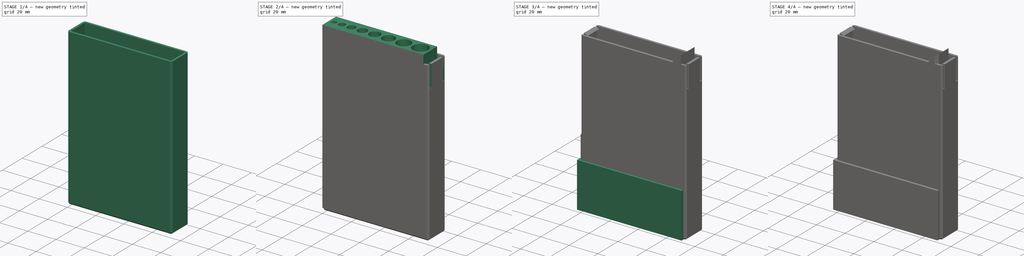
[diagram: build sequence overview — one tinted view per stage of 4, left to right]
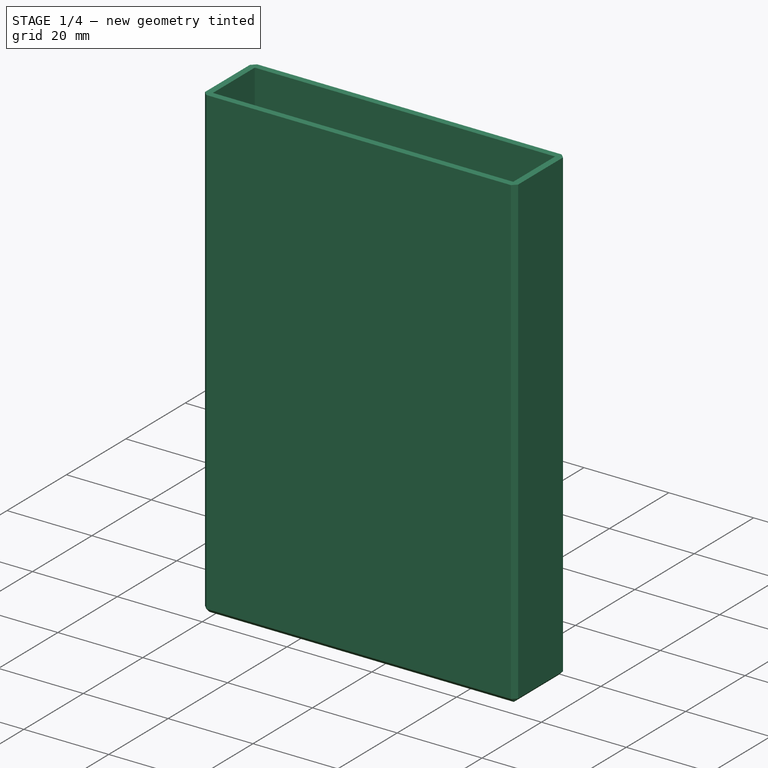
[diagram: stage 1 of 4 — iso view after this stage's code; geometry added in this stage tinted green]
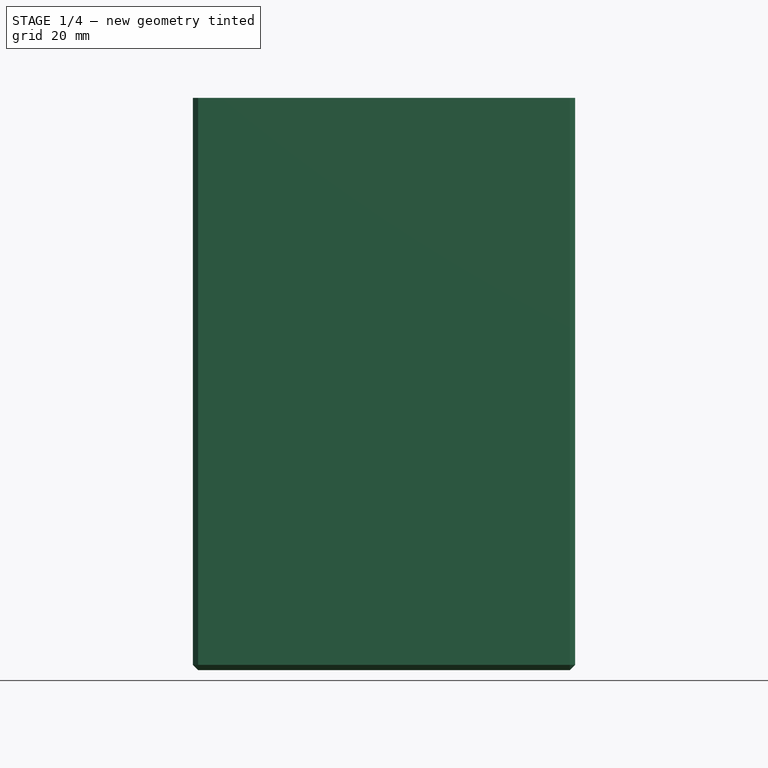
[diagram: stage 1 of 4 — front view after this stage's code; geometry added in this stage tinted green]
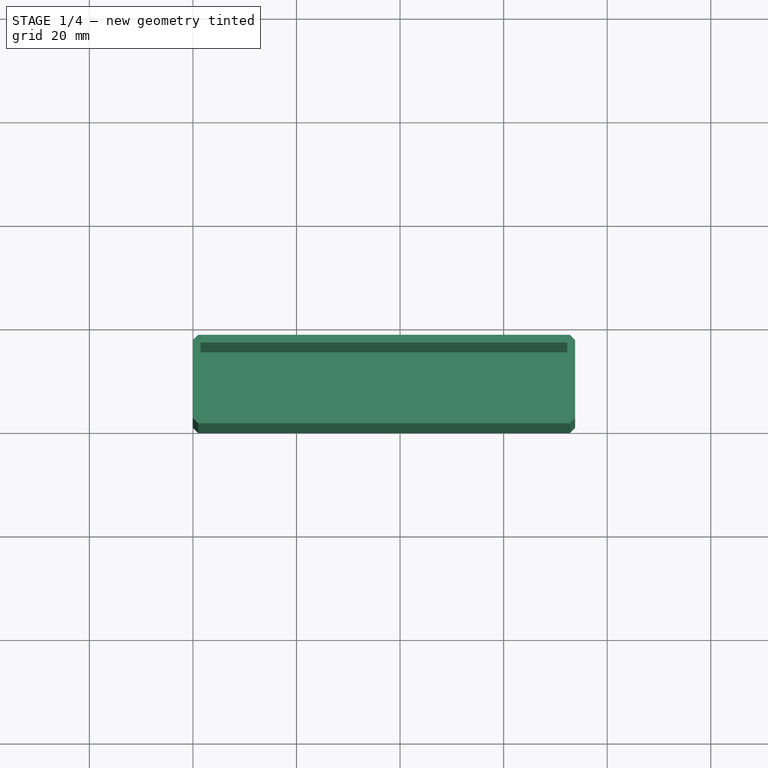
[diagram: stage 1 of 4 — top view after this stage's code; geometry added in this stage tinted green]
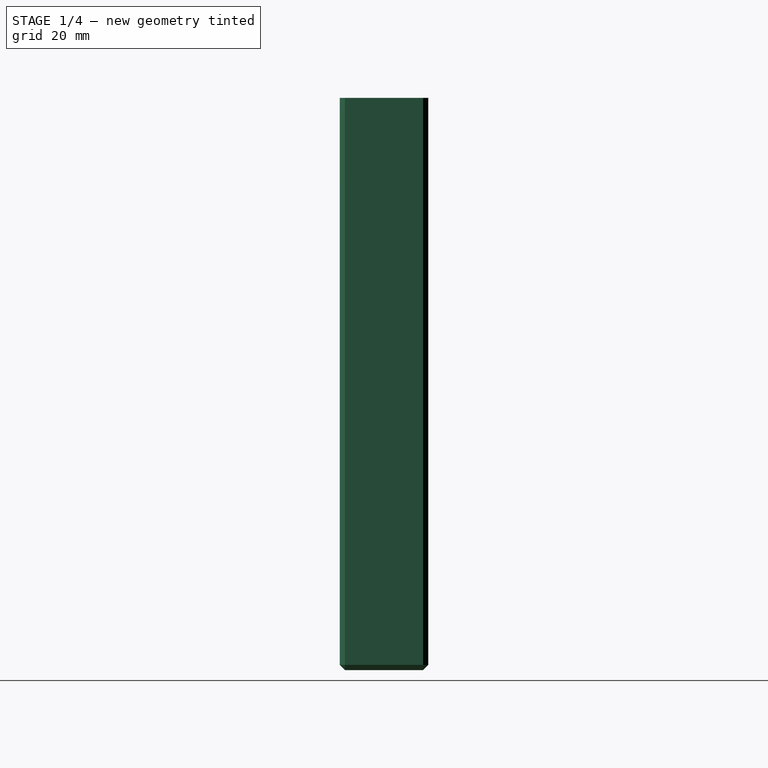
[diagram: stage 1 of 4 — right view after this stage's code; geometry added in this stage tinted green]
FCSTD DOCUMENT  (FreeCAD 2022.111R28429 (Git))
Label: drill box
License: All rights reserved
LicenseURL: http://en.wikipedia.org/wiki/All_rights_reserved
objects: Sketcher::SketchObject×9, PartDesign::Pad×6, PartDesign::Pocket×3, PartDesign::Chamfer×2, PartDesign::Body×2, Spreadsheet::Sheet×1, PartDesign::Fillet×1
note: 47 computed .brp shape members not serialized (recipe doc carries the construction recipe); baked Part::Feature solids carry a one-line shape summary decoded from their .brp

FEATURE [Sketcher::SketchObject] Sketch003
  FullyConstrained = true
  MapMode = 5
  Support = -> [XY_Plane001]
  TreeRank = 0
  expr: Constraints[10] = <<dim>>.cap_width
  expr: Constraints[19] = <<dim>>.wall
  expr: Constraints[20] = <<dim>>.wall
  expr: Constraints[21] = <<dim>>.wall
  expr: Constraints[22] = <<dim>>.wall
  expr: Constraints[9] = <<dim>>.cap_length
  sketch-geometry (8):
    g0: LineSegment StartX=0 StartY=0 StartZ=0 EndX=73.8 EndY=0 EndZ=0
    g1: LineSegment StartX=73.8 StartY=0 StartZ=0 EndX=73.8 EndY=17.1 EndZ=0
    g2: LineSegment StartX=73.8 StartY=17.1 StartZ=0 EndX=0 EndY=17.1 EndZ=0
    g3: LineSegment StartX=0 StartY=17.1 StartZ=0 EndX=0 EndY=0 EndZ=0
    g4: LineSegment StartX=1.5 StartY=15.6 StartZ=0 EndX=72.3 EndY=15.6 EndZ=0
    g5: LineSegment StartX=72.3 StartY=15.6 StartZ=0 EndX=72.3 EndY=1.5 EndZ=0
    g6: LineSegment StartX=72.3 StartY=1.5 StartZ=0 EndX=1.5 EndY=1.5 EndZ=0
    g7: LineSegment StartX=1.5 StartY=1.5 StartZ=0 EndX=1.5 EndY=15.6 EndZ=0
  constraints (23):
    c: Coincident(g0,g1)
    c: Coincident(g1,g2)
    c: Coincident(g2,g3)
    c: Coincident(g3,g0)
    c: Horizontal(g0)
    c: Horizontal(g2)
    c: Vertical(g1)
    c: Vertical(g3)
    c: Coincident(g0,g-1)
    c: DistanceX(g1) = 73.8
    c: DistanceY(g1) = 17.1
    c: Coincident(g4,g5)
    c: Coincident(g5,g6)
    c: Coincident(g6,g7)
    c: Coincident(g7,g4)
    c: Horizontal(g4)
    c: Horizontal(g6)
    c: Vertical(g5)
    c: Vertical(g7)
    c: DistanceX(g5,g0) = 1.5
    c: DistanceY(g0,g5) = 1.5
    c: DistanceY(g4,g1) = 1.5
    c: DistanceX(g2,g4) = 1.5
FEATURE [PartDesign::Pad] Pad002
  ClaimChildren = false
  Direction = (1,1,1)
  Fit = 0
  FitJoin = 0
  InnerFit = 0
  InnerFitJoin = 0
  InnerTaperAngle = 0
  InnerTaperAngleRev = 0
  Length = 109
  Length2 = 100
  Linearize = true
  NewSolid = false
  Profile = -> Sketch003
  Refine = true
  Suppress = false
  TreeRank = 0
  Type = 0
  _ProfileBasedVersion = 1
  expr: Length = Spreadsheet.cap_height
FEATURE [Sketcher::SketchObject] Sketch004
  FullyConstrained = true
  MapMode = 5
  Support = -> [XY_Plane001]
  TreeRank = 0
  expr: Constraints[10] = <<dim>>.cap_width
  expr: Constraints[9] = <<dim>>.cap_length
  sketch-geometry (4):
    g0: LineSegment StartX=0 StartY=0 StartZ=0 EndX=73.8 EndY=0 EndZ=0
    g1: LineSegment StartX=73.8 StartY=0 StartZ=0 EndX=73.8 EndY=17.1 EndZ=0
    g2: LineSegment StartX=73.8 StartY=17.1 StartZ=0 EndX=0 EndY=17.1 EndZ=0
    g3: LineSegment StartX=0 StartY=17.1 StartZ=0 EndX=0 EndY=0 EndZ=0
  constraints (11):
    c: Coincident(g0,g1)
    c: Coincident(g1,g2)
    c: Coincident(g2,g3)
    c: Coincident(g3,g0)
    c: Horizontal(g0)
    c: Horizontal(g2)
    c: Vertical(g1)
    c: Vertical(g3)
    c: Coincident(g0,g-1)
    c: DistanceX(g1) = 73.8
    c: DistanceY(g1) = 17.1
FEATURE [PartDesign::Pad] Pad003
  BaseFeature = -> Pad002
  ClaimChildren = false
  Direction = (1,1,1)
  Fit = 0
  FitJoin = 0
  InnerFit = 0
  InnerFitJoin = 0
  InnerTaperAngle = 0
  InnerTaperAngleRev = 0
  Length = 1.5
  Length2 = 100
  Linearize = true
  NewSolid = false
  Profile = -> Sketch004
  Refine = true
  Reversed = true
  Suppress = false
  TreeRank = 0
  Type = 0
  _ProfileBasedVersion = 1
  expr: Length = <<dim>>.wall
FEATURE [PartDesign::Chamfer] Chamfer001
  Angle = 45
  Base = -> Pad003 [Edge24,Edge23,Edge3,Edge4,Edge5,Edge1,Edge6,Edge2]
  BaseFeature = -> Pad003
  ChamferType = 0
  FlipDirection = false
  NewSolid = false
  Refine = true
  Size = 1
  Size2 = 1
  SupportTransform = false
  Suppress = false
  TreeRank = 0
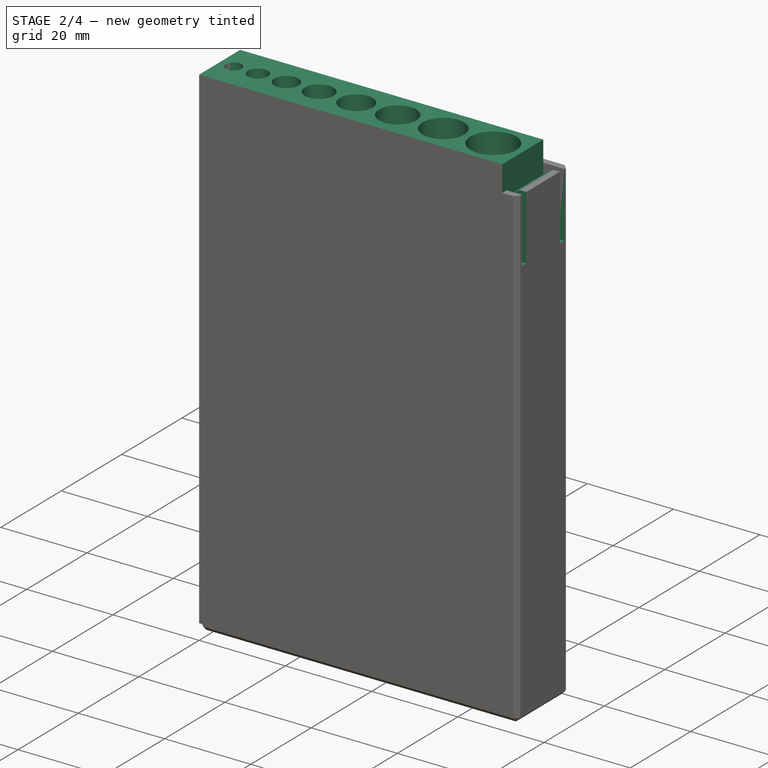
[diagram: stage 2 of 4 — iso view after this stage's code; geometry added in this stage tinted green]
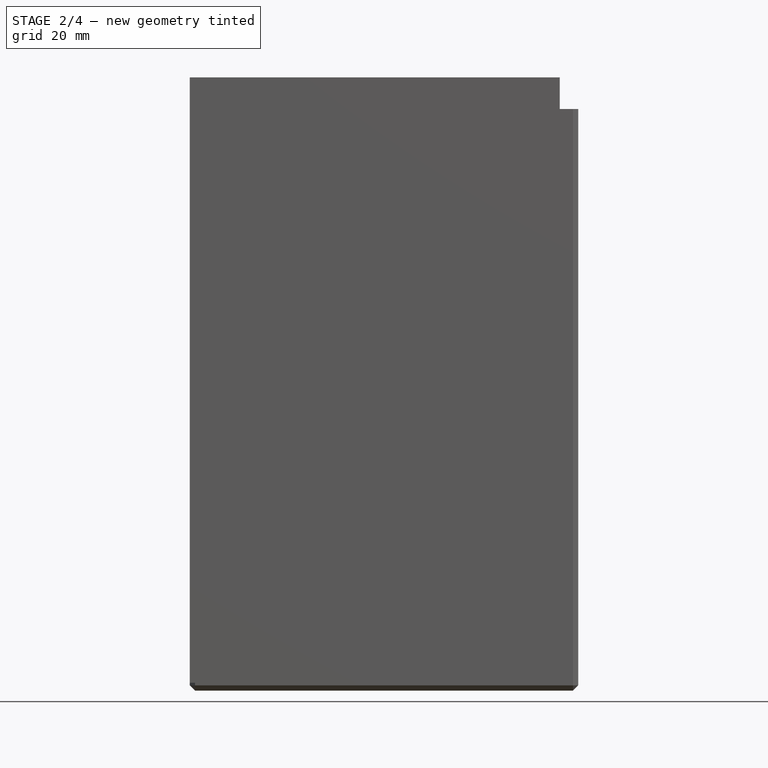
[diagram: stage 2 of 4 — front view after this stage's code; geometry added in this stage tinted green]
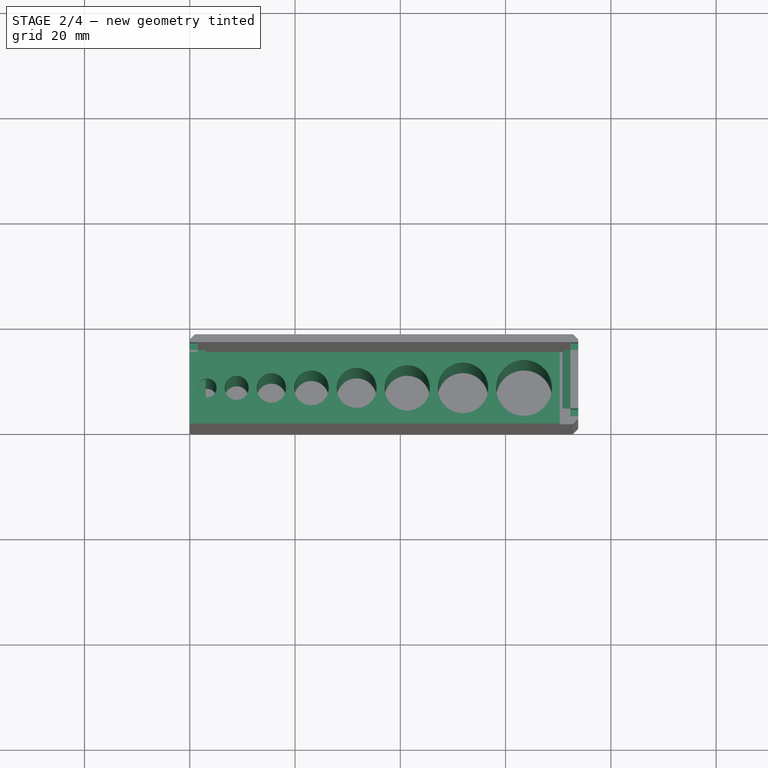
[diagram: stage 2 of 4 — top view after this stage's code; geometry added in this stage tinted green]
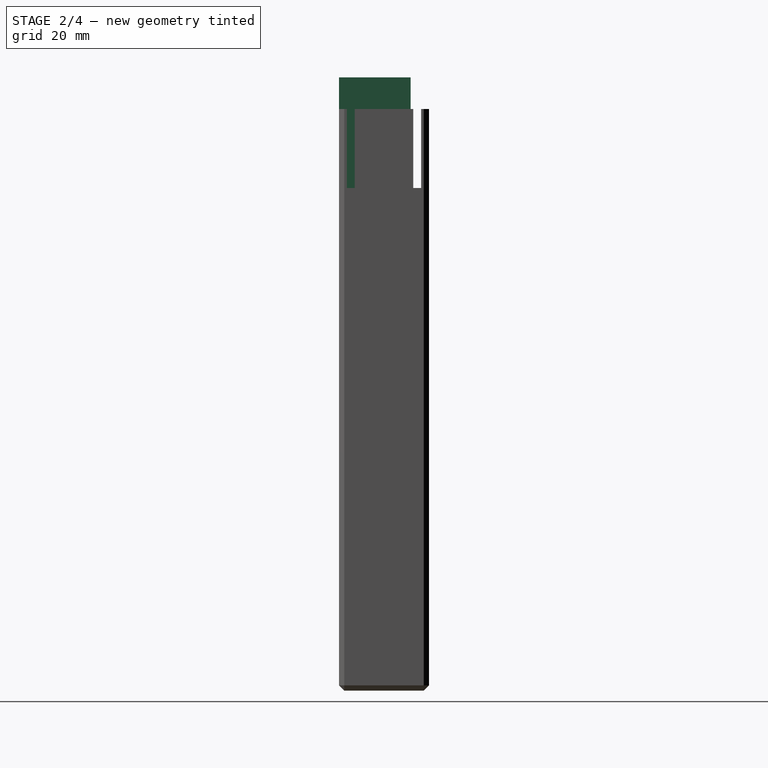
[diagram: stage 2 of 4 — right view after this stage's code; geometry added in this stage tinted green]
FEATURE [Spreadsheet::Sheet] Spreadsheet  label="dim"
  PythonMode = false
  ShowCells = 0
  TreeRank = 0
  cells = A1=drill diameters; C1=hole + slack + wall; D1=inter-distance; F1=drill length; A2=drill_d_3; B2(drill_d_3)==3mm; C2==B2 + wall + diameter_hole_slack; F2=drill_l_3; G2(drill_l_3)==66mm; A3=drill_d_4; B3(drill_d_4)==4mm; C3==B3 + wall + diameter_hole_slack; D3(inter_3_4)==B2 / 2 + B3 / 2 + diameter_hole_slack + wall; F3=drill_l_4; G3(drill_l_4)==76mm; A4=drill_d_5; B4(drill_d_5)==5mm; C4==B4 + wall + diameter_hole_slack; D4(inter_4_5)==B3 / 2 + B4 / 2 + diameter_hole_slack + wall; F4=drill_l_5; G4(drill_l_5)==86mm; A5=drill_d_6; B5(drill_d_6)==6mm; C5==B5 + wall + diameter_hole_slack; D5(inter_5_6)==B4 / 2 + B5 / 2 + diameter_hole_slack + wall; F5=drill_l_6; G5(drill_l_6)==93mm; A6=drill_d_7; B6(drill_d_7)==7mm; C6==B6 + wall + diameter_hole_slack; D6(inter_6_7)==B5 / 2 + B6 / 2 + diameter_hole_slack + wall; F6=drill_l_7; G6(drill_l_7)==107mm; A7=drill_d_8; B7(drill_d_8)==8mm; C7==B7 + wall + diameter_hole_slack; D7(inter_7_8)==B6 / 2 + B7 / 2 + diameter_hole_slack + wall; F7=drill_l_8; G7(drill_l_8)==117mm; A8=drill_d_9; B8(drill_d_9)==9mm; C8==B8 + wall + diameter_hole_slack; D8(inter_8_9)==B7 / 2 + B8 / 2 + diameter_hole_slack + wall; F8=drill_l_9; G8(drill_l_9)==126mm; A9=drill_d_10; B9(drill_d_10)==10mm; C9==B9 + diameter_hole_slack; D9(inter_9_10)==B8 / 2 + B9 / 2 + diameter_hole_slack + wall; F9=drill_l_10; G9(drill_l_10)==135mm; A10=drill_total_no_wall; B10(drill_total_no_wall)==C10; C10==C2 + C3 + C4 + C5 + C6 + C7 + C8 + C9; F11=length_reduction; G11(length_reduction)==20mm; A12=diameter_hole_slack; B12(diameter_hole_slack)==0.6mm; A13=wall; B13(wall)==1.5mm; F13=box_height_low; G13(box_height_low)==drill_l_3 - length_reduction; F14=box_height_high; G14(box_height_high)==drill_l_10 - length_reduction; A15=box_length; B15(box_length)==drill_total_no_wall + 2 * wall; A16=box_width; B16(box_width)==max(B2, B9) + 2 * wall + diameter_hole_slack; A17=box_overlap_lip_height; B17(box_overlap_lip_height)==30mm; A19=cap_slack; B19(cap_slack)==0.5mm; A20=cap_overlap; B20(cap_overlap)==20mm; A21=cap_width; B21(cap_width)==box_width + 2 * wall + cap_slack; A22=cap_length; B22(cap_length)==box_length + 2 * wall + cap_slack; A23=cap_height; B23(cap_height)==drill_l_10 - drill_l_3 + length_reduction + cap_overlap; A25=lock_depth; B25(lock_depth)==1.25mm; A26=lock_height; B26(lock_height)==1.5mm; A27=lock_slot_length; B27(lock_slot_length)==15mm
FEATURE [Sketcher::SketchObject] Sketch
  FullyConstrained = true
  MapMode = 5
  Support = -> [XY_Plane]
  TreeRank = 0
  expr: Constraints[10] = <<dim>>.box_width
  expr: Constraints[11] = <<dim>>.diameter_hole_slack + <<dim>>.drill_d_3
  expr: Constraints[12] = <<dim>>.diameter_hole_slack + <<dim>>.drill_d_5
  expr: Constraints[22] = <<dim>>.diameter_hole_slack + <<dim>>.drill_d_4
  expr: Constraints[23] = <<dim>>.diameter_hole_slack + <<dim>>.drill_d_6
  expr: Constraints[24] = <<dim>>.diameter_hole_slack + <<dim>>.drill_d_7
  expr: Constraints[25] = <<dim>>.diameter_hole_slack + <<dim>>.drill_d_8
  expr: Constraints[26] = <<dim>>.diameter_hole_slack + <<dim>>.drill_d_9
  expr: Constraints[27] = <<dim>>.diameter_hole_slack + <<dim>>.drill_d_10
  expr: Constraints[28] = <<dim>>.wall + (<<dim>>.drill_d_3 + <<dim>>.diameter_hole_slack) / 2
  expr: Constraints[29] = <<dim>>.inter_3_4
  expr: Constraints[30] = <<dim>>.inter_4_5
  expr: Constraints[31] = <<dim>>.inter_5_6
  expr: Constraints[32] = <<dim>>.inter_6_7
  expr: Constraints[33] = <<dim>>.inter_7_8
  expr: Constraints[34] = <<dim>>.inter_8_9
  expr: Constraints[35] = <<dim>>.inter_9_10
  expr: Constraints[9] = <<dim>>.box_length
  sketch-geometry (13):
    g0: LineSegment StartX=0 StartY=0 StartZ=0 EndX=70.3 EndY=0 EndZ=0
    g1: LineSegment StartX=70.3 StartY=0 StartZ=0 EndX=70.3 EndY=13.6 EndZ=0
    g2: LineSegment StartX=70.3 StartY=13.6 StartZ=0 EndX=0 EndY=13.6 EndZ=0
    g3: LineSegment StartX=0 StartY=13.6 StartZ=0 EndX=0 EndY=0 EndZ=0
    g4: Circle CenterX=3.3 CenterY=6.8 CenterZ=0 NormalX=0 NormalY=0 NormalZ=1 AngleXU=0 Radius=1.8
    g5: Circle CenterX=8.9 CenterY=6.8 CenterZ=0 NormalX=0 NormalY=0 NormalZ=1 AngleXU=0 Radius=2.3
    g6: Circle CenterX=15.5 CenterY=6.8 CenterZ=0 NormalX=0 NormalY=0 NormalZ=1 AngleXU=0 Radius=2.8
    g7: Circle CenterX=23.1 CenterY=6.8 CenterZ=0 NormalX=0 NormalY=0 NormalZ=1 AngleXU=0 Radius=3.3
    g8: Circle CenterX=31.7 CenterY=6.8 CenterZ=0 NormalX=0 NormalY=0 NormalZ=1 AngleXU=0 Radius=3.8
    g9: Circle CenterX=41.3 CenterY=6.8 CenterZ=0 NormalX=0 NormalY=0 NormalZ=1 AngleXU=0 Radius=4.3
    g10: Circle CenterX=51.9 CenterY=6.8 CenterZ=0 NormalX=0 NormalY=0 NormalZ=1 AngleXU=0 Radius=4.8
    g11: Circle CenterX=63.5 CenterY=6.8 CenterZ=0 NormalX=0 NormalY=0 NormalZ=1 AngleXU=0 Radius=5.3
    g12: GeomPoint [constr] X=70.3 Y=6.8 Z=0
  constraints (36):
    c: Coincident(g0,g1)
    c: Coincident(g1,g2)
    c: Coincident(g2,g3)
    c: Coincident(g3,g0)
    c: Horizontal(g0)
    c: Horizontal(g2)
    c: Vertical(g1)
    c: Vertical(g3)
    c: Coincident(g0,g-1)
    c: DistanceX(g2,g2) = 70.3
    c: DistanceY(g1,g1) = 13.6
    c: Diameter(g4) = 3.6
    c: Diameter(g6) = 5.6
    c: Horizontal(g4,g5)
    c: Horizontal(g5,g6)
    c: Horizontal(g6,g7)
    c: Horizontal(g7,g8)
    c: Horizontal(g8,g9)
    c: Horizontal(g9,g10)
    c: Horizontal(g10,g11)
    c: Symmetric(g0,g1,g12)
    c: Horizontal(g12,g11)
    c: Diameter(g5) = 4.6
    c: Diameter(g7) = 6.6
    c: Diameter(g8) = 7.6
    c: Diameter(g9) = 8.6
    c: Diameter(g10) = 9.6
    c: Diameter(g11) = 10.6
    c: DistanceX(g0,g4) = 3.3
    c: DistanceX(g4,g5) = 5.6
    c: DistanceX(g5,g6) = 6.6
    c: DistanceX(g6,g7) = 7.6
    c: DistanceX(g7,g8) = 8.6
    c: DistanceX(g8,g9) = 9.6
    c: DistanceX(g9,g10) = 10.6
    c: DistanceX(g10,g11) = 11.6
FEATURE [PartDesign::Pad] Pad
  ClaimChildren = false
  Direction = (1,1,1)
  Fit = 0
  FitJoin = 0
  InnerFit = 0
  InnerFitJoin = 0
  InnerTaperAngle = 0
  InnerTaperAngleRev = 0
  Length = 115
  Length2 = 100
  Linearize = true
  NewSolid = false
  Profile = -> Sketch
  Refine = true
  Suppress = false
  TreeRank = 0
  Type = 0
  _ProfileBasedVersion = 1
  expr: Length = <<dim>>.box_height_high
FEATURE [PartDesign::Body] Body  label="box"
  AutoGroupSolids = false
  ExportMode = 0
  Group = -> [Sketch,Pad,Sketch001,Pocket,Sketch002,Pad001,Sketch005,Pad004,Chamfer,Fillet,Sketch006,Pocket001]
  Origin = -> Origin
  Tip = -> Pocket001
  TreeRank = 0
  _ExportChildren = -> [Pad,Pocket,Pad001,Pad004,Chamfer,Fillet,Pocket001]
  _GroupVersion = 1
FEATURE [Sketcher::SketchObject] Sketch007
  ExternalGeometry = -> [Chamfer001]
  FullyConstrained = true
  MapMode = 5
  Placement = pos=(0,1.5,0) rot=(0,0.707107,0.707107;3.14159rad)
  Support = -> [Chamfer001]
  TreeRank = 7
  expr: Constraints[15] = <<dim>>.lock_height
  sketch-geometry (6):
    g0: LineSegment StartX=-72.3 StartY=109 StartZ=0 EndX=-72.3 EndY=107.268 EndZ=0
    g1: LineSegment StartX=-72.3 StartY=107.268 StartZ=0 EndX=-70.8 EndY=108.134 EndZ=0
    g2: LineSegment StartX=-70.8 StartY=108.134 StartZ=0 EndX=-72.3 EndY=109 EndZ=0
    g3: LineSegment StartX=-1.5 StartY=109 StartZ=0 EndX=-1.5 EndY=107.268 EndZ=0
    g4: LineSegment StartX=-1.5 StartY=107.268 StartZ=0 EndX=-3 EndY=108.134 EndZ=0
    g5: LineSegment StartX=-3 StartY=108.134 StartZ=0 EndX=-1.5 EndY=109 EndZ=0
  constraints (16):
    c: Coincident(g-3,g0)
    c: Vertical(g0)
    c: Coincident(g0,g1)
    c: Coincident(g1,g2)
    c: Coincident(g2,g0)
    c: Coincident(g-3,g3)
    c: Vertical(g3)
    c: Coincident(g3,g4)
    c: Coincident(g4,g5)
    c: Coincident(g5,g3)
    c: Equal(g1,g0)
    c: Equal(g0,g2)
    c: Equal(g2,g5)
    c: Equal(g5,g4)
    c: Equal(g4,g3)
    c: DistanceX(g0,g1) = 1.5
FEATURE [PartDesign::Pad] Pad005
  BaseFeature = -> Chamfer001
  ClaimChildren = false
  Direction = (1,1,1)
  Fit = 0
  FitJoin = 0
  InnerFit = 0
  InnerFitJoin = 0
  InnerTaperAngle = 0
  InnerTaperAngleRev = 0
  Length = 10
  Length2 = 100
  Linearize = true
  NewSolid = false
  Profile = -> Sketch007
  Refine = true
  Suppress = false
  TreeRank = 8
  Type = 2
  _ProfileBasedVersion = 1
FEATURE [Sketcher::SketchObject] Sketch008
  ExternalGeometry = -> [Pad005]
  FullyConstrained = true
  MapMode = 5
  Placement = pos=(0,0,0) rot=(0.57735,-0.57735,-0.57735;2.0944rad)
  Support = -> [Pad005]
  TreeRank = 9
  expr: Constraints[18] = <<dim>>.lock_slot_length
  expr: Constraints[19] = <<dim>>.wall
  sketch-geometry (8):
    g0: LineSegment StartX=-15.6 StartY=109 StartZ=0 EndX=-14.1 EndY=109 EndZ=0
    g1: LineSegment StartX=-14.1 StartY=109 StartZ=0 EndX=-14.1 EndY=94 EndZ=0
    g2: LineSegment StartX=-14.1 StartY=94 StartZ=0 EndX=-15.6 EndY=94 EndZ=0
    g3: LineSegment StartX=-15.6 StartY=94 StartZ=0 EndX=-15.6 EndY=109 EndZ=0
    g4: LineSegment StartX=-1.5 StartY=109 StartZ=0 EndX=-3 EndY=109 EndZ=0
    g5: LineSegment StartX=-3 StartY=109 StartZ=0 EndX=-3 EndY=94 EndZ=0
    g6: LineSegment StartX=-3 StartY=94 StartZ=0 EndX=-1.5 EndY=94 EndZ=0
    g7: LineSegment StartX=-1.5 StartY=94 StartZ=0 EndX=-1.5 EndY=109 EndZ=0
  constraints (22):
    c: Coincident(g0,g1)
    c: Coincident(g1,g2)
    c: Coincident(g2,g3)
    c: Coincident(g3,g0)
    c: Horizontal(g0)
    c: Horizontal(g2)
    c: Vertical(g1)
    c: Vertical(g3)
    c: Coincident(g4,g5)
    c: Coincident(g5,g6)
    c: Coincident(g6,g7)
    c: Coincident(g7,g4)
    c: Horizontal(g4)
    c: Horizontal(g6)
    c: Vertical(g5)
    c: Vertical(g7)
    c: Equal(g1,g5)
    c: Equal(g2,g6)
    c: DistanceY(g7,g7) = 15
    c: DistanceX(g6,g6) = 1.5
    c: Coincident(g0,g-3)
    c: Coincident(g4,g-3)
FEATURE [PartDesign::Pocket] Pocket002
  BaseFeature = -> Pad005
  ClaimChildren = false
  Fit = 0
  FitJoin = 0
  InnerFit = 0
  InnerFitJoin = 0
  InnerTaperAngle = 0
  InnerTaperAngleRev = 0
  Length = 5
  Length2 = 100
  Linearize = true
  NewSolid = false
  Profile = -> Sketch008
  Refine = true
  Suppress = false
  TreeRank = 10
  Type = 1
  _ProfileBasedVersion = 1
FEATURE [PartDesign::Body] Body001  label="cap"
  AutoGroupSolids = false
  ExportMode = 0
  Group = -> [Sketch003,Pad002,Sketch004,Pad003,Chamfer001,Sketch007,Pad005,Sketch008,Pocket002]
  Origin = -> Origin001
  Tip = -> Pocket002
  TreeRank = 0
  _ExportChildren = -> [Pad002,Pad003,Chamfer001,Pad005,Pocket002]
  _GroupVersion = 1
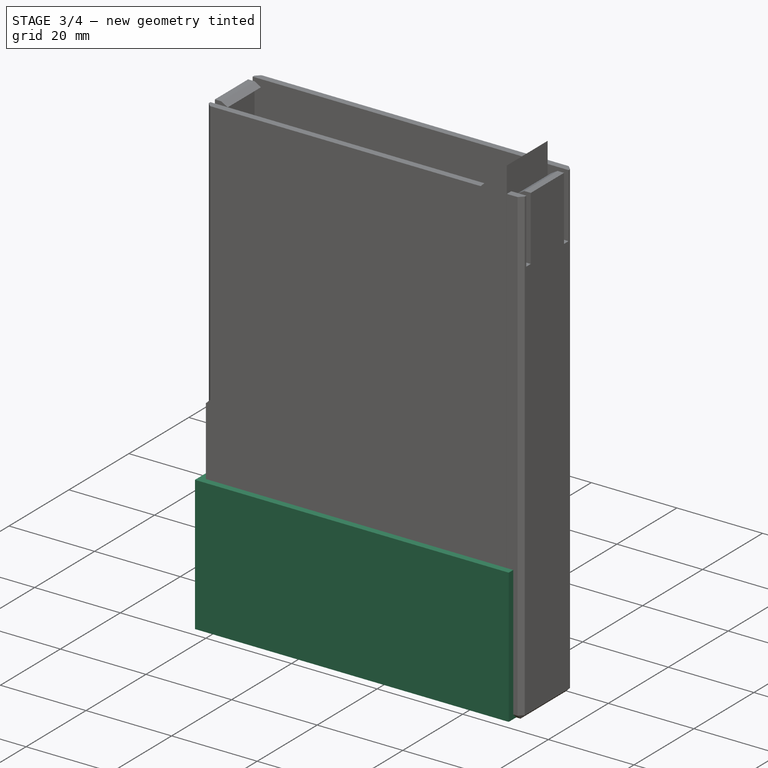
[diagram: stage 3 of 4 — iso view after this stage's code; geometry added in this stage tinted green]
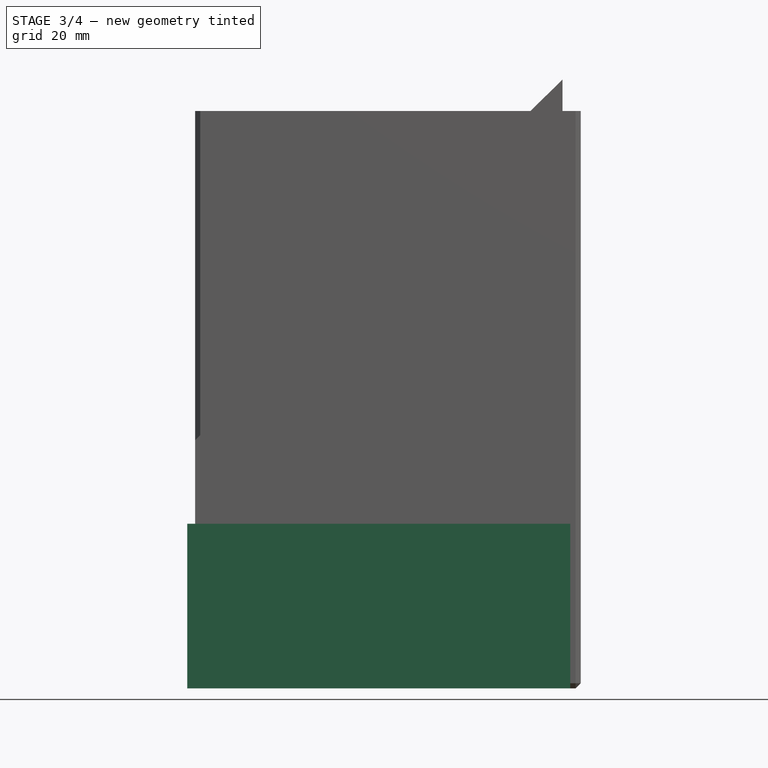
[diagram: stage 3 of 4 — front view after this stage's code; geometry added in this stage tinted green]
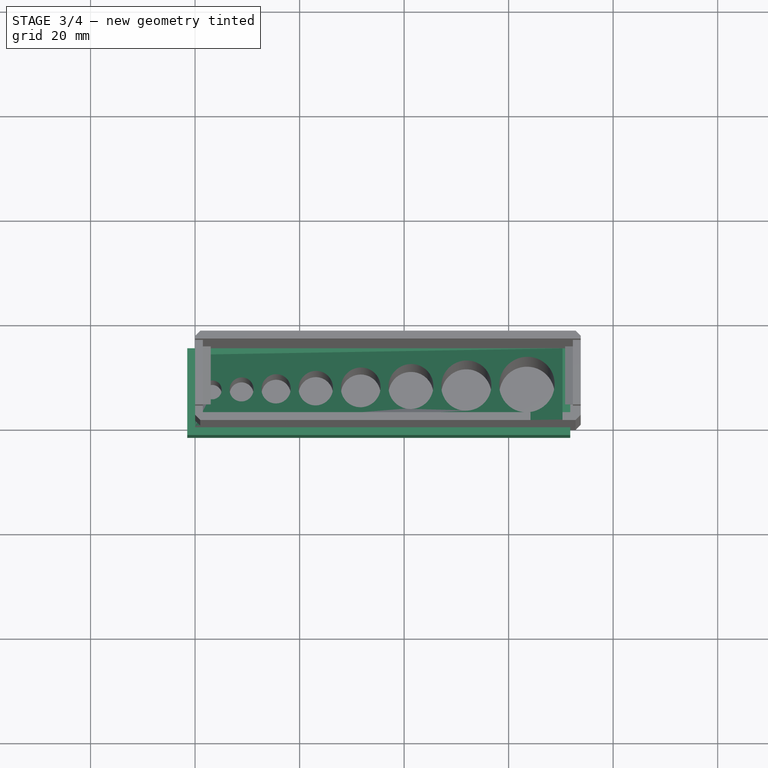
[diagram: stage 3 of 4 — top view after this stage's code; geometry added in this stage tinted green]
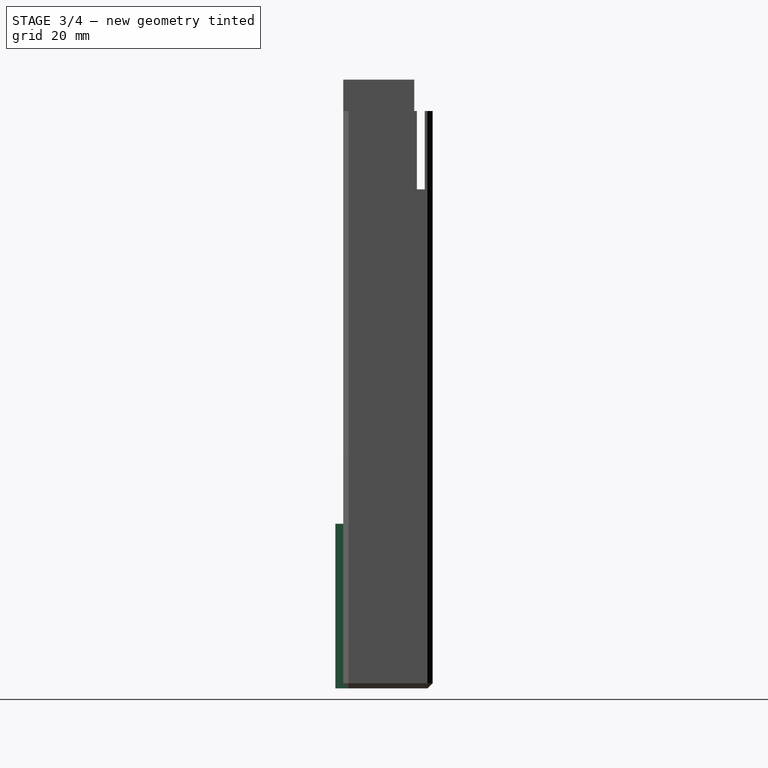
[diagram: stage 3 of 4 — right view after this stage's code; geometry added in this stage tinted green]
FEATURE [Sketcher::SketchObject] Sketch001
  FullyConstrained = true
  MapMode = 5
  Placement = pos=(0,0,0) rot=(1,0,0;1.5708rad)
  Support = -> [XZ_Plane]
  TreeRank = 0
  expr: Constraints[13] = <<dim>>.box_height_low
  expr: Constraints[8] = <<dim>>.box_length
  expr: Constraints[9] = <<dim>>.box_height_high
  sketch-geometry (5):
    g0: LineSegment StartX=-10 StartY=46 StartZ=0 EndX=0 EndY=46 EndZ=0
    g1: LineSegment StartX=0 StartY=46 StartZ=0 EndX=70.3 EndY=115 EndZ=0
    g2: LineSegment StartX=70.3 StartY=115 StartZ=0 EndX=70.3 EndY=125 EndZ=0
    g3: LineSegment StartX=70.3 StartY=125 StartZ=0 EndX=-10 EndY=125 EndZ=0
    g4: LineSegment StartX=-10 StartY=125 StartZ=0 EndX=-10 EndY=46 EndZ=0
  constraints (15):
    c: Horizontal(g0)
    c: Coincident(g0,g1)
    c: Coincident(g1,g2)
    c: Coincident(g2,g3)
    c: Horizontal(g3)
    c: Coincident(g3,g4)
    c: Coincident(g4,g0)
    c: Vertical(g4)
    c: DistanceX(g1) = 70.3
    c: DistanceY(g1) = 115
    c: Vertical(g2)
    c: DistanceY(g2,g2) = 10
    c: Vertical(g0,g-1)
    c: DistanceY(g0) = 46
    c: Equal(g0,g2)
FEATURE [PartDesign::Pocket] Pocket
  BaseFeature = -> Pad
  ClaimChildren = false
  Fit = 0
  FitJoin = 0
  InnerFit = 0
  InnerFitJoin = 0
  InnerTaperAngle = 0
  InnerTaperAngleRev = 0
  Length = 5
  Length2 = 100
  Linearize = true
  NewSolid = false
  Profile = -> Sketch001
  Refine = true
  Suppress = false
  TreeRank = 0
  Type = 1
  _ProfileBasedVersion = 1
FEATURE [Sketcher::SketchObject] Sketch002
  FullyConstrained = true
  MapMode = 5
  Support = -> [XY_Plane]
  TreeRank = 0
  expr: Constraints[10] = <<dim>>.box_width
  expr: Constraints[9] = <<dim>>.box_length
  sketch-geometry (4):
    g0: LineSegment StartX=0 StartY=0 StartZ=0 EndX=70.3 EndY=0 EndZ=0
    g1: LineSegment StartX=70.3 StartY=0 StartZ=0 EndX=70.3 EndY=13.6 EndZ=0
    g2: LineSegment StartX=70.3 StartY=13.6 StartZ=0 EndX=0 EndY=13.6 EndZ=0
    g3: LineSegment StartX=0 StartY=13.6 StartZ=0 EndX=0 EndY=0 EndZ=0
  constraints (11):
    c: Coincident(g0,g1)
    c: Coincident(g1,g2)
    c: Coincident(g2,g3)
    c: Coincident(g3,g0)
    c: Horizontal(g0)
    c: Horizontal(g2)
    c: Vertical(g1)
    c: Vertical(g3)
    c: Coincident(g0,g-1)
    c: DistanceX(g1) = 70.3
    c: DistanceY(g1) = 13.6
FEATURE [PartDesign::Pad] Pad001
  BaseFeature = -> Pocket
  ClaimChildren = false
  Direction = (1,1,1)
  Fit = 0
  FitJoin = 0
  InnerFit = 0
  InnerFitJoin = 0
  InnerTaperAngle = 0
  InnerTaperAngleRev = 0
  Length = 1.5
  Length2 = 100
  Linearize = true
  NewSolid = false
  Profile = -> Sketch002
  Refine = true
  Reversed = true
  Suppress = false
  TreeRank = 0
  Type = 0
  _ProfileBasedVersion = 1
  expr: Length = <<dim>>.wall
FEATURE [Sketcher::SketchObject] Sketch005
  FullyConstrained = true
  MapMode = 5
  Support = -> [XY_Plane]
  TreeRank = 1
  expr: Constraints[10] = <<dim>>.box_length + 2 * <<dim>>.wall
  expr: Constraints[11] = <<dim>>.box_width + 2 * <<dim>>.wall
  expr: Constraints[21] = <<dim>>.wall
  expr: Constraints[22] = <<dim>>.wall
  expr: Constraints[8] = <<dim>>.wall
  expr: Constraints[9] = <<dim>>.wall
  sketch-geometry (8):
    g0: LineSegment StartX=-1.5 StartY=-1.5 StartZ=0 EndX=71.8 EndY=-1.5 EndZ=0
    g1: LineSegment StartX=71.8 StartY=-1.5 StartZ=0 EndX=71.8 EndY=15.1 EndZ=0
    g2: LineSegment StartX=71.8 StartY=15.1 StartZ=0 EndX=-1.5 EndY=15.1 EndZ=0
    g3: LineSegment StartX=-1.5 StartY=15.1 StartZ=0 EndX=-1.5 EndY=-1.5 EndZ=0
    g4: LineSegment StartX=0 StartY=0 StartZ=0 EndX=70.3 EndY=0 EndZ=0
    g5: LineSegment StartX=70.3 StartY=0 StartZ=0 EndX=70.3 EndY=13.6 EndZ=0
    g6: LineSegment StartX=70.3 StartY=13.6 StartZ=0 EndX=0 EndY=13.6 EndZ=0
    g7: LineSegment StartX=0 StartY=13.6 StartZ=0 EndX=0 EndY=0 EndZ=0
  constraints (23):
    c: Coincident(g0,g1)
    c: Coincident(g1,g2)
    c: Coincident(g2,g3)
    c: Coincident(g3,g0)
    c: Horizontal(g0)
    c: Horizontal(g2)
    c: Vertical(g1)
    c: Vertical(g3)
    c: DistanceX(g0,g-1) = 1.5
    c: DistanceY(g0,g-1) = 1.5
    c: DistanceX(g0,g0) = 73.3
    c: DistanceY(g1,g1) = 16.6
    c: Coincident(g4,g5)
    c: Coincident(g5,g6)
    c: Coincident(g6,g7)
    c: Coincident(g7,g4)
    c: Horizontal(g4)
    c: Horizontal(g6)
    c: Vertical(g5)
    c: Vertical(g7)
    c: Coincident(g4,g-1)
    c: DistanceX(g5,g1) = 1.5
    c: DistanceY(g5,g1) = 1.5
FEATURE [PartDesign::Pad] Pad004
  BaseFeature = -> Pad001
  ClaimChildren = false
  Direction = (1,1,1)
  Fit = 0
  FitJoin = 0
  InnerFit = 0
  InnerFitJoin = 0
  InnerTaperAngle = 0
  InnerTaperAngleRev = 0
  Length = 30
  Length2 = 1.5
  Linearize = true
  NewSolid = false
  Profile = -> Sketch005
  Refine = true
  Suppress = false
  TreeRank = 2
  Type = 4
  _ProfileBasedVersion = 1
  expr: Length = <<dim>>.box_overlap_lip_height
  expr: Length2 = <<dim>>.wall
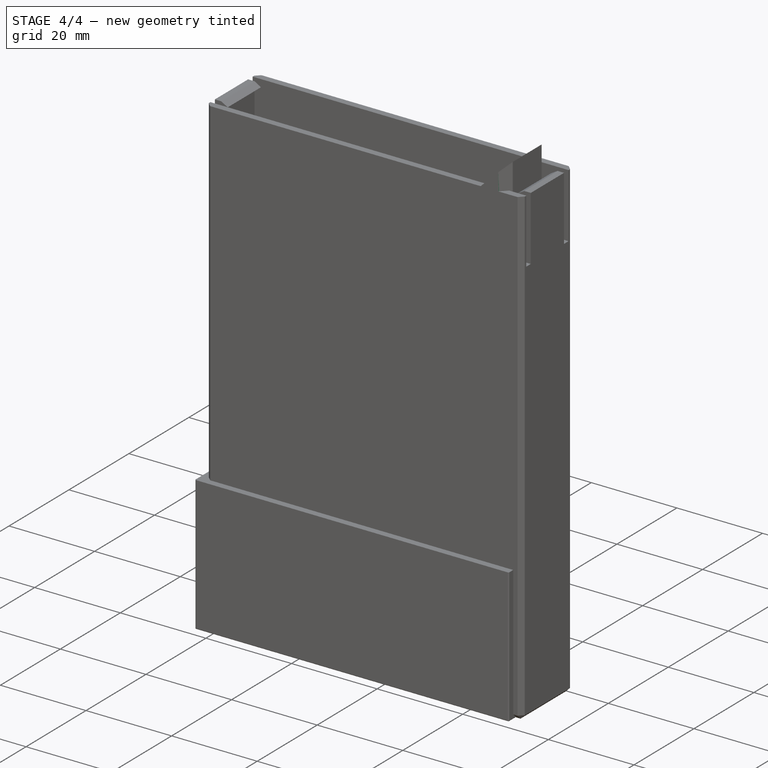
[diagram: stage 4 of 4 — iso view after this stage's code; geometry added in this stage tinted green]
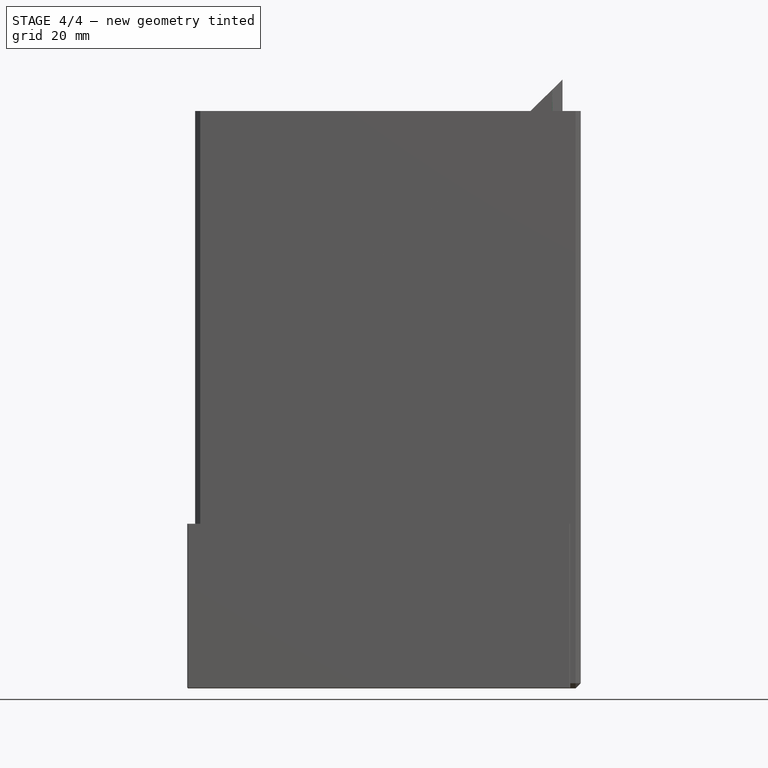
[diagram: stage 4 of 4 — front view after this stage's code; geometry added in this stage tinted green]
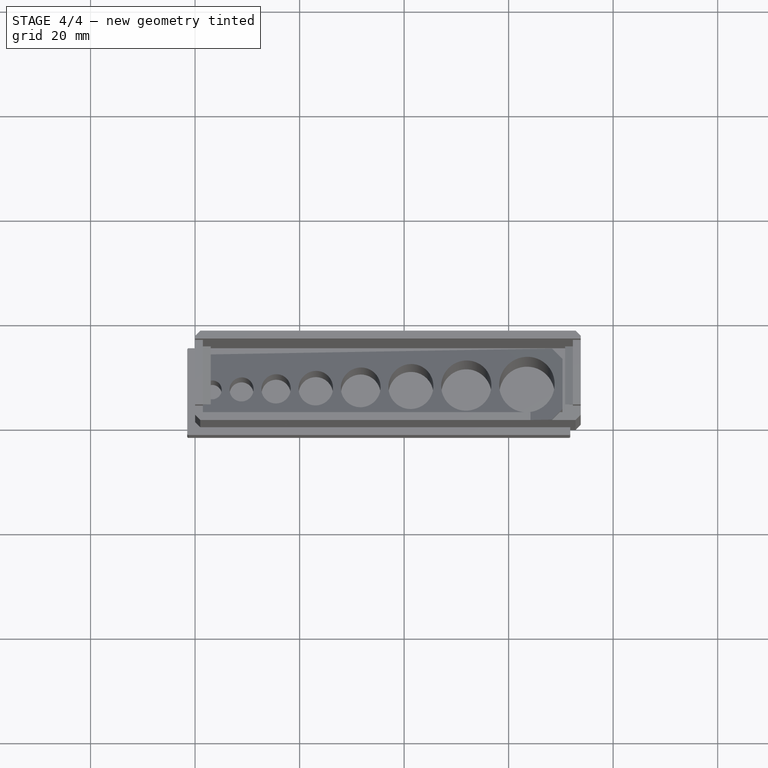
[diagram: stage 4 of 4 — top view after this stage's code; geometry added in this stage tinted green]
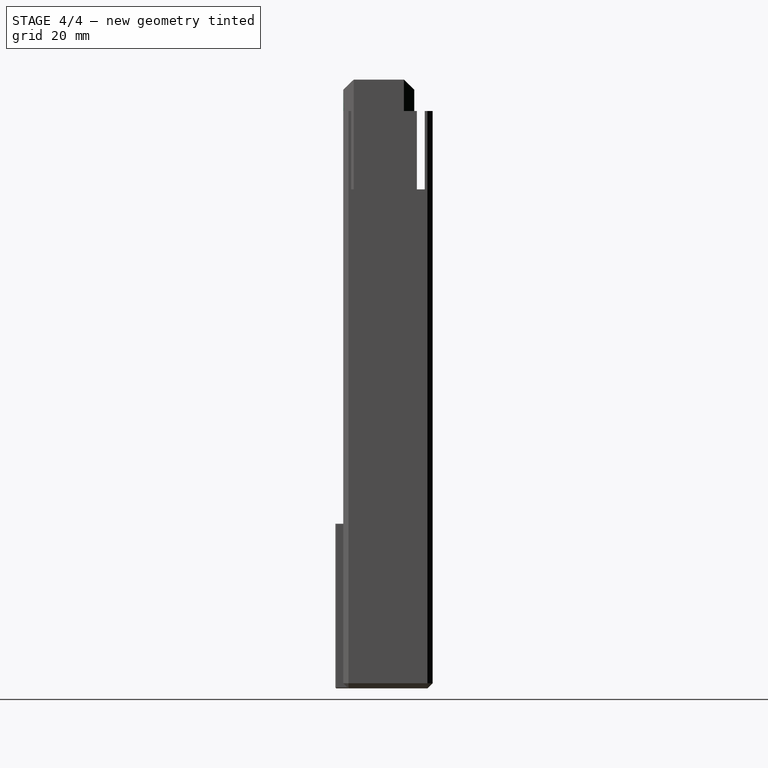
[diagram: stage 4 of 4 — right view after this stage's code; geometry added in this stage tinted green]
FEATURE [PartDesign::Chamfer] Chamfer
  Angle = 45
  Base = -> Pad004 [Edge13,Edge16,Edge15,Edge19]
  BaseFeature = -> Pad004
  ChamferType = 0
  FlipDirection = false
  NewSolid = false
  Refine = true
  Size = 2
  Size2 = 1
  SupportTransform = false
  Suppress = false
  TreeRank = 3
FEATURE [PartDesign::Fillet] Fillet
  Base = -> Chamfer [Edge53,Edge54,Edge56,Edge58,Face31]
  BaseFeature = -> Chamfer
  NewSolid = false
  Radius = 0.25
  Refine = true
  SupportTransform = false
  Suppress = false
  TreeRank = 4
FEATURE [Sketcher::SketchObject] Sketch006
  ExternalGeometry = -> [Fillet]
  FullyConstrained = true
  MapMode = 5
  Placement = pos=(0,-1.2e-15,0) rot=(1,0,0;1.5708rad)
  Support = -> [Fillet]
  TreeRank = 5
  expr: Constraints[12] = <<dim>>.lock_depth
  expr: Constraints[13] = <<dim>>.cap_slack
  expr: Constraints[16] = <<dim>>.lock_depth
  expr: Constraints[17] = <<dim>>.cap_slack
  expr: Constraints[8] = <<dim>>.lock_height
  expr: Constraints[9] = <<dim>>.lock_height
  sketch-geometry (6):
    g0: LineSegment StartX=-0.25 StartY=32.2321 StartZ=0 EndX=1.25 EndY=31.366 EndZ=0
    g1: LineSegment StartX=1.25 StartY=31.366 StartZ=0 EndX=-0.25 EndY=30.5 EndZ=0
    g2: LineSegment StartX=-0.25 StartY=30.5 StartZ=0 EndX=-0.25 EndY=32.2321 EndZ=0
    g3: LineSegment StartX=70.55 StartY=32.2321 StartZ=0 EndX=69.05 EndY=31.366 EndZ=0
    g4: LineSegment StartX=69.05 StartY=31.366 StartZ=0 EndX=70.55 EndY=30.5 EndZ=0
    g5: LineSegment StartX=70.55 StartY=30.5 StartZ=0 EndX=70.55 EndY=32.2321 EndZ=0
  constraints (18):
    c: Coincident(g0,g1)
    c: Coincident(g1,g2)
    c: Coincident(g2,g0)
    c: Coincident(g3,g4)
    c: Coincident(g4,g5)
    c: Coincident(g5,g3)
    c: Vertical(g5)
    c: Vertical(g2)
    c: DistanceX(g0,g0) = 1.5
    c: DistanceX(g3,g3) = 1.5
    c: Equal(g4,g3)
    c: Equal(g3,g5)
    c: DistanceX(g3,g-4) = 1.25
    c: DistanceY(g-4,g4) = 0.5
    c: Equal(g1,g2)
    c: Equal(g2,g0)
    c: DistanceX(g0) = 1.25
    c: DistanceY(g-3,g1) = 0.5
FEATURE [PartDesign::Pocket] Pocket001
  BaseFeature = -> Fillet
  ClaimChildren = false
  Fit = 0
  FitJoin = 0
  InnerFit = 0
  InnerFitJoin = 0
  InnerTaperAngle = 0
  InnerTaperAngleRev = 0
  Length = 5
  Length2 = 100
  Linearize = true
  NewSolid = false
  Profile = -> Sketch006
  Refine = true
  Suppress = false
  TreeRank = 6
  Type = 1
  _ProfileBasedVersion = 1
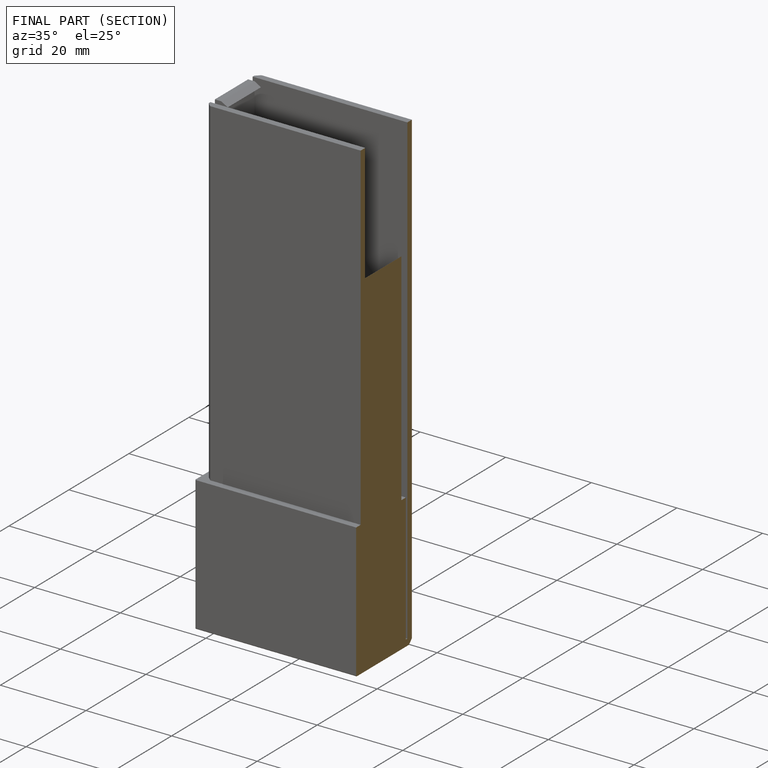
[diagram: finished part — half-section view (interior)]
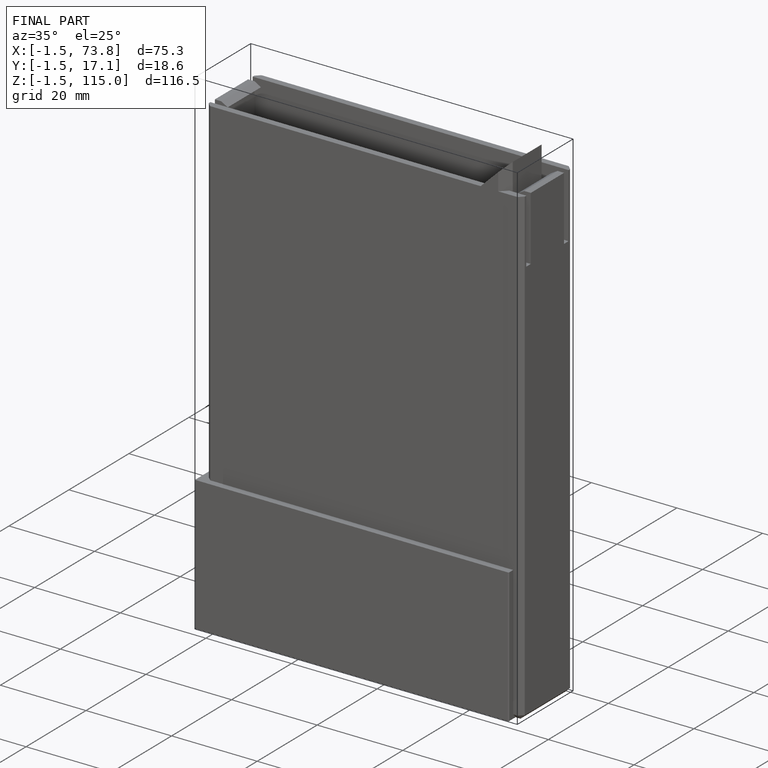
[diagram: finished part — iso view with bounding-box wireframe]
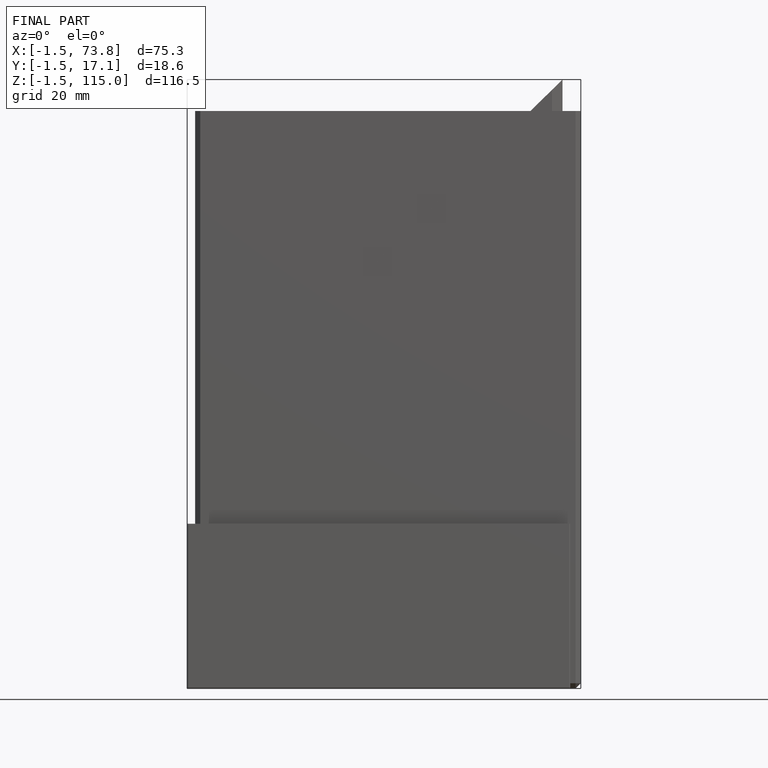
[diagram: finished part — front view with bounding-box wireframe]
